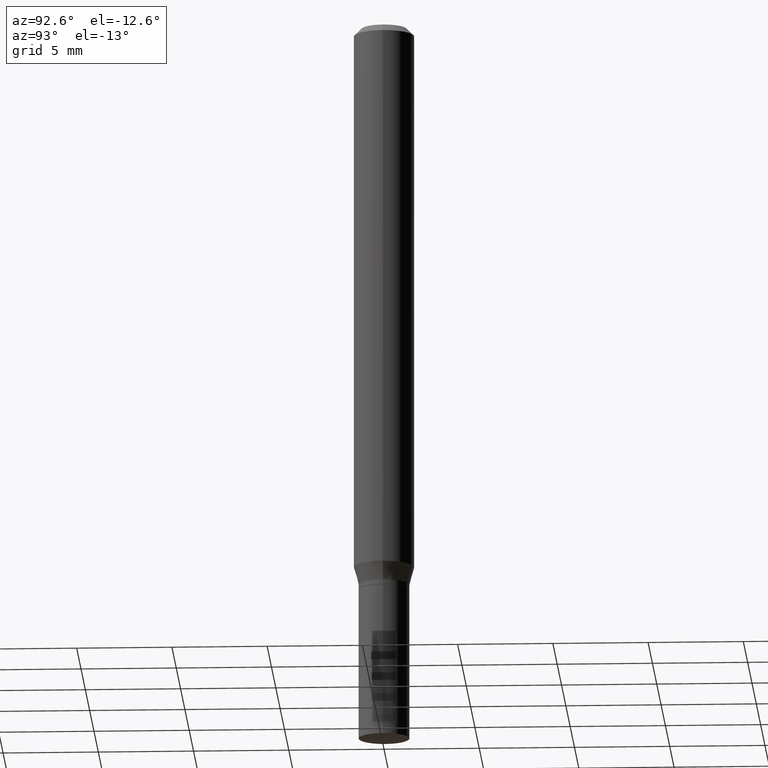
[diagram: clean part render]
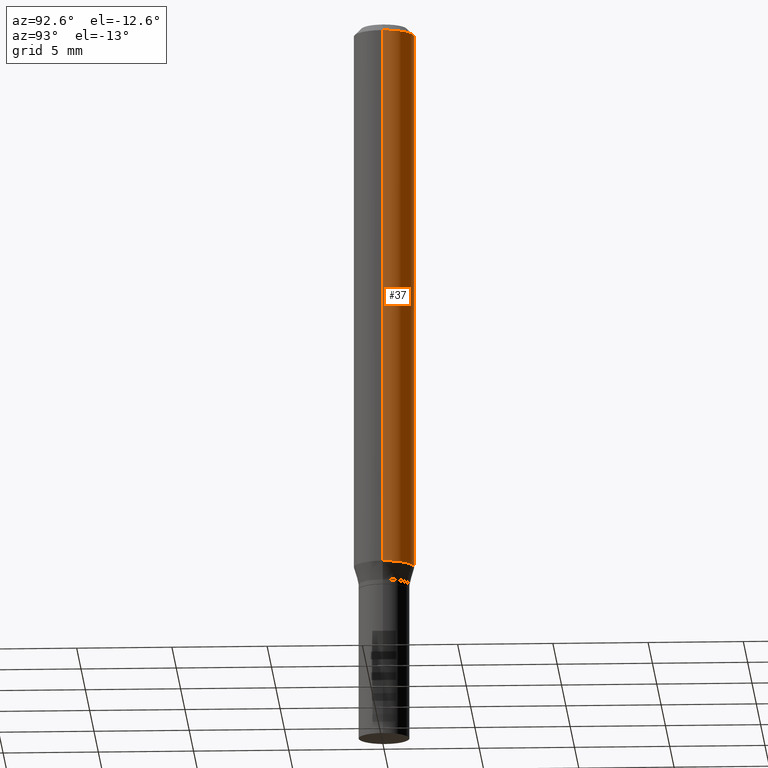
[diagram: same view with one face highlighted and labeled with its STEP entity id]
A machine part, auxiliary view. The second image highlights one B-rep face of the part: STEP entity #37.
In plain terms, the highlighted cylindrical surface (edge-blend (fillet) strip) has radius 1.5875 mm, axis along (-0, 0, 1).
Its self-contained STEP definition (entity closure, byte-faithful):
#27 = CYLINDRICAL_SURFACE ( 'NONE', #179, 0.06250000000000000000 ) ;
#30 = EDGE_CURVE ( 'NONE', #138, #51, #158, .T. ) ;
#37 = ADVANCED_FACE ( 'NONE', ( #302 ), #27, .T. ) ;
#51 = VERTEX_POINT ( 'NONE', #281 ) ;
#54 = ORIENTED_EDGE ( 'NONE', *, *, #466, .T. ) ;
#59 = AXIS2_PLACEMENT_3D ( 'NONE', #424, #245, #274 ) ;
#78 = CARTESIAN_POINT ( 'NONE',  ( 0.06250000000000000000, -4.408621882993677332E-15, -1.137679491924311614 ) ) ;
#82 = CIRCLE ( 'NONE', #262, 0.06250000000000000000 ) ;
#83 = ORIENTED_EDGE ( 'NONE', *, *, #261, .F. ) ;
#84 = CARTESIAN_POINT ( 'NONE',  ( 3.668203209277705088E-31, -5.237222008264718399E-17, -0.01499999999999999944 ) ) ;
#119 = EDGE_LOOP ( 'NONE', ( #54, #369, #83, #410 ) ) ;
#138 = VERTEX_POINT ( 'NONE', #257 ) ;
#142 = CARTESIAN_POINT ( 'NONE',  ( 0.06250000000000000000, -4.888073874380388472E-16, -0.01499999999999999944 ) ) ;
#143 = LINE ( 'NONE', #442, #399 ) ;
#158 = LINE ( 'NONE', #344, #159 ) ;
#159 = VECTOR ( 'NONE', #303, 39.37007874015748143 ) ;
#161 = CARTESIAN_POINT ( 'NONE',  ( 0.000000000000000000, 0.000000000000000000, 0.000000000000000000 ) ) ;
#179 = AXIS2_PLACEMENT_3D ( 'NONE', #161, #304, #454 ) ;
#190 = VERTEX_POINT ( 'NONE', #142 ) ;
#192 = DIRECTION ( 'NONE',  ( -2.445468806185136597E-29, 3.491481338843145583E-15, 1.000000000000000000 ) ) ;
#193 = VERTEX_POINT ( 'NONE', #78 ) ;
#224 = DIRECTION ( 'NONE',  ( -2.445468806185136877E-29, 3.491481338843145188E-15, 1.000000000000000000 ) ) ;
#234 = CIRCLE ( 'NONE', #59, 0.06250000000000000000 ) ;
#242 = EDGE_CURVE ( 'NONE', #193, #190, #143, .T. ) ;
#245 = DIRECTION ( 'NONE',  ( -2.445468806185136597E-29, 3.491481338843145583E-15, 1.000000000000000000 ) ) ;
#257 = CARTESIAN_POINT ( 'NONE',  ( -0.06250000000000000000, -3.528097505788222652E-15, -1.137679491924311614 ) ) ;
#261 = EDGE_CURVE ( 'NONE', #190, #51, #82, .T. ) ;
#262 = AXIS2_PLACEMENT_3D ( 'NONE', #84, #192, #440 ) ;
#274 = DIRECTION ( 'NONE',  ( 1.000000000000000000, -6.982962677686270655E-15, 0.000000000000000000 ) ) ;
#281 = CARTESIAN_POINT ( 'NONE',  ( -0.06250000000000000000, -1.568190258010403558E-15, -0.01499999999999999944 ) ) ;
#302 = FACE_OUTER_BOUND ( 'NONE', #119, .T. ) ;
#303 = DIRECTION ( 'NONE',  ( -2.445468806185136877E-29, 3.491481338843145188E-15, 1.000000000000000000 ) ) ;
#304 = DIRECTION ( 'NONE',  ( -2.445468806185136597E-29, 3.491481338843145583E-15, 1.000000000000000000 ) ) ;
#344 = CARTESIAN_POINT ( 'NONE',  ( -0.06250000000000000000, 4.440892098500626162E-16, -3.074334431409316114E-30 ) ) ;
#369 = ORIENTED_EDGE ( 'NONE', *, *, #30, .T. ) ;
#399 = VECTOR ( 'NONE', #224, 39.37007874015748143 ) ;
#410 = ORIENTED_EDGE ( 'NONE', *, *, #242, .F. ) ;
#424 = CARTESIAN_POINT ( 'NONE',  ( 2.782159708937459233E-29, -3.972186715638284874E-15, -1.137679491924311614 ) ) ;
#440 = DIRECTION ( 'NONE',  ( 1.000000000000000000, -6.982962677686266711E-15, 0.000000000000000000 ) ) ;
#442 = CARTESIAN_POINT ( 'NONE',  ( 0.06250000000000000000, -4.364351673553916694E-16, 3.047610484872459871E-30 ) ) ;
#454 = DIRECTION ( 'NONE',  ( 1.000000000000000000, -6.982962677686266711E-15, 4.876176775795935793E-29 ) ) ;
#466 = EDGE_CURVE ( 'NONE', #193, #138, #234, .T. ) ;